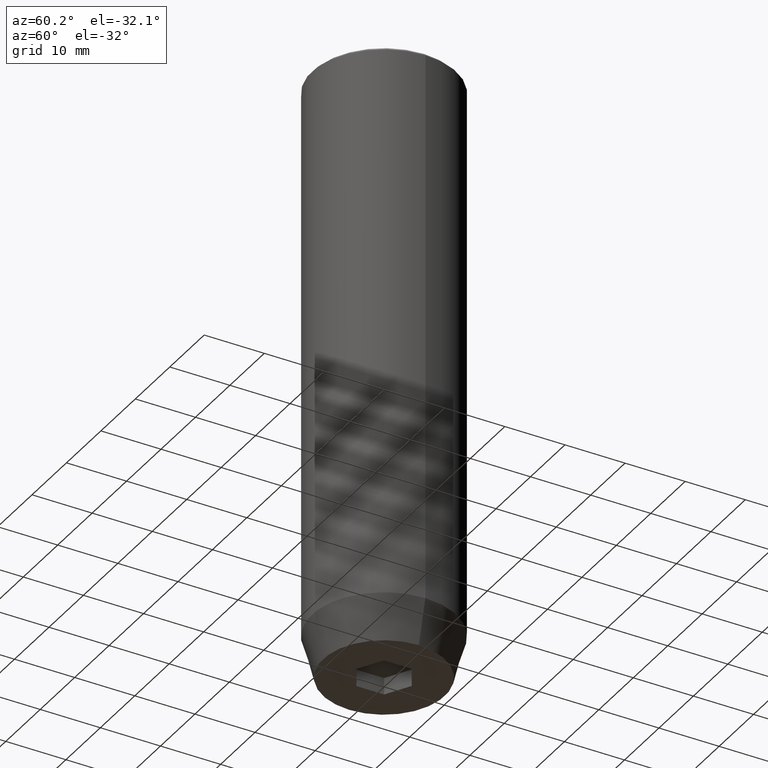
[diagram: clean part render]
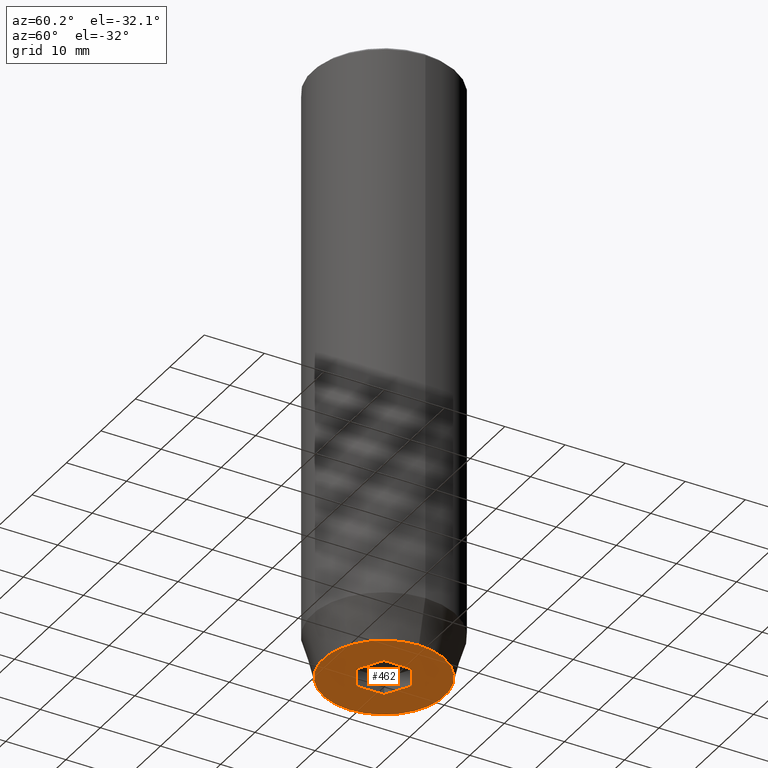
[diagram: same view with one face highlighted and labeled with its STEP entity id]
A machine part, auxiliary view. The second image highlights one B-rep face of the part: STEP entity #462.
In plain terms, the highlighted planar face has unit normal (0, 0, -1).
Its self-contained STEP definition (entity closure, byte-faithful):
#13 = CARTESIAN_POINT ( 'NONE',  ( -10.12435565298213547, 1.354726066681111050E-15, -100.0000000000000000 ) ) ;
#42 = EDGE_LOOP ( 'NONE', ( #418, #381 ) ) ;
#45 = VERTEX_POINT ( 'NONE', #216 ) ;
#51 = DIRECTION ( 'NONE',  ( -0.8660254037844384856, -0.5000000000000002220, 0.000000000000000000 ) ) ;
#62 = EDGE_LOOP ( 'NONE', ( #279, #327, #377, #289, #389, #101 ) ) ;
#64 = VERTEX_POINT ( 'NONE', #579 ) ;
#65 = EDGE_CURVE ( 'NONE', #196, #297, #489, .T. ) ;
#71 = EDGE_CURVE ( 'NONE', #64, #421, #127, .T. ) ;
#72 = CARTESIAN_POINT ( 'NONE',  ( 10.12435565298213547, 0.000000000000000000, -100.0000000000000000 ) ) ;
#91 = DIRECTION ( 'NONE',  ( 1.000000000000000000, 0.000000000000000000, 0.000000000000000000 ) ) ;
#99 = VECTOR ( 'NONE', #578, 1000.000000000000114 ) ;
#101 = ORIENTED_EDGE ( 'NONE', *, *, #180, .F. ) ;
#107 = VERTEX_POINT ( 'NONE', #124 ) ;
#115 = CARTESIAN_POINT ( 'NONE',  ( -4.000000000000000000, 0.000000000000000000, -100.0000000000000000 ) ) ;
#122 = CARTESIAN_POINT ( 'NONE',  ( 4.000000000000000000, 0.000000000000000000, -100.0000000000000000 ) ) ;
#124 = CARTESIAN_POINT ( 'NONE',  ( 4.336808689942017736E-16, -4.618802153517006737, -100.0000000000000000 ) ) ;
#127 = LINE ( 'NONE', #300, #539 ) ;
#129 = VECTOR ( 'NONE', #173, 1000.000000000000000 ) ;
#132 = CARTESIAN_POINT ( 'NONE',  ( 4.000000000000000000, -2.309401076758502480, -100.0000000000000000 ) ) ;
#141 = LINE ( 'NONE', #181, #384 ) ;
#157 = CARTESIAN_POINT ( 'NONE',  ( 2.000000000000000888, -3.464101615137754386, -100.0000000000000000 ) ) ;
#161 = DIRECTION ( 'NONE',  ( -1.000000000000000000, 0.000000000000000000, -0.000000000000000000 ) ) ;
#164 = CARTESIAN_POINT ( 'NONE',  ( 0.000000000000000000, 4.618802153517006737, -100.0000000000000000 ) ) ;
#172 = LINE ( 'NONE', #496, #99 ) ;
#173 = DIRECTION ( 'NONE',  ( 0.000000000000000000, -1.000000000000000000, 0.000000000000000000 ) ) ;
#176 = CARTESIAN_POINT ( 'NONE',  ( 0.000000000000000000, 0.000000000000000000, -100.0000000000000000 ) ) ;
#177 = VECTOR ( 'NONE', #51, 1000.000000000000114 ) ;
#180 = EDGE_CURVE ( 'NONE', #421, #196, #141, .T. ) ;
#181 = CARTESIAN_POINT ( 'NONE',  ( 2.000000000000000444, 3.464101615137754386, -100.0000000000000000 ) ) ;
#190 = CIRCLE ( 'NONE', #265, 10.12435565298213547 ) ;
#191 = LINE ( 'NONE', #115, #340 ) ;
#196 = VERTEX_POINT ( 'NONE', #223 ) ;
#216 = CARTESIAN_POINT ( 'NONE',  ( -4.000000000000000000, -2.309401076758503368, -100.0000000000000000 ) ) ;
#222 = EDGE_CURVE ( 'NONE', #474, #371, #190, .T. ) ;
#223 = CARTESIAN_POINT ( 'NONE',  ( 4.000000000000000000, 2.309401076758503368, -100.0000000000000000 ) ) ;
#241 = CIRCLE ( 'NONE', #573, 10.12435565298213547 ) ;
#245 = PLANE ( 'NONE',  #383 ) ;
#265 = AXIS2_PLACEMENT_3D ( 'NONE', #497, #367, #91 ) ;
#277 = EDGE_CURVE ( 'NONE', #371, #474, #241, .T. ) ;
#279 = ORIENTED_EDGE ( 'NONE', *, *, #71, .F. ) ;
#289 = ORIENTED_EDGE ( 'NONE', *, *, #416, .F. ) ;
#297 = VERTEX_POINT ( 'NONE', #132 ) ;
#300 = CARTESIAN_POINT ( 'NONE',  ( -2.000000000000000000, 3.464101615137754830, -100.0000000000000000 ) ) ;
#314 = DIRECTION ( 'NONE',  ( 0.8660254037844387076, 0.5000000000000001110, 0.000000000000000000 ) ) ;
#324 = EDGE_CURVE ( 'NONE', #45, #64, #191, .T. ) ;
#327 = ORIENTED_EDGE ( 'NONE', *, *, #324, .F. ) ;
#340 = VECTOR ( 'NONE', #523, 1000.000000000000000 ) ;
#353 = FACE_BOUND ( 'NONE', #62, .T. ) ;
#365 = DIRECTION ( 'NONE',  ( -0.000000000000000000, -0.000000000000000000, 1.000000000000000000 ) ) ;
#367 = DIRECTION ( 'NONE',  ( -0.000000000000000000, -0.000000000000000000, 1.000000000000000000 ) ) ;
#371 = VERTEX_POINT ( 'NONE', #72 ) ;
#376 = DIRECTION ( 'NONE',  ( 0.8660254037844385966, -0.5000000000000001110, 0.000000000000000000 ) ) ;
#377 = ORIENTED_EDGE ( 'NONE', *, *, #554, .F. ) ;
#381 = ORIENTED_EDGE ( 'NONE', *, *, #222, .F. ) ;
#383 = AXIS2_PLACEMENT_3D ( 'NONE', #475, #552, #161 ) ;
#384 = VECTOR ( 'NONE', #376, 1000.000000000000000 ) ;
#389 = ORIENTED_EDGE ( 'NONE', *, *, #65, .F. ) ;
#416 = EDGE_CURVE ( 'NONE', #297, #107, #570, .T. ) ;
#418 = ORIENTED_EDGE ( 'NONE', *, *, #277, .F. ) ;
#421 = VERTEX_POINT ( 'NONE', #164 ) ;
#427 = FACE_OUTER_BOUND ( 'NONE', #42, .T. ) ;
#462 = ADVANCED_FACE ( 'NONE', ( #353, #427 ), #245, .T. ) ;
#474 = VERTEX_POINT ( 'NONE', #13 ) ;
#475 = CARTESIAN_POINT ( 'NONE',  ( 0.000000000000000000, 10.12435565298213547, -100.0000000000000000 ) ) ;
#489 = LINE ( 'NONE', #122, #129 ) ;
#496 = CARTESIAN_POINT ( 'NONE',  ( -2.000000000000000888, -3.464101615137754386, -100.0000000000000000 ) ) ;
#497 = CARTESIAN_POINT ( 'NONE',  ( 0.000000000000000000, 0.000000000000000000, -100.0000000000000000 ) ) ;
#523 = DIRECTION ( 'NONE',  ( 0.000000000000000000, 1.000000000000000000, 0.000000000000000000 ) ) ;
#539 = VECTOR ( 'NONE', #314, 999.9999999999998863 ) ;
#547 = DIRECTION ( 'NONE',  ( 1.000000000000000000, 0.000000000000000000, 0.000000000000000000 ) ) ;
#552 = DIRECTION ( 'NONE',  ( 0.000000000000000000, 0.000000000000000000, -1.000000000000000000 ) ) ;
#554 = EDGE_CURVE ( 'NONE', #107, #45, #172, .T. ) ;
#570 = LINE ( 'NONE', #157, #177 ) ;
#573 = AXIS2_PLACEMENT_3D ( 'NONE', #176, #365, #547 ) ;
#578 = DIRECTION ( 'NONE',  ( -0.8660254037844384856, 0.5000000000000002220, 0.000000000000000000 ) ) ;
#579 = CARTESIAN_POINT ( 'NONE',  ( -4.000000000000000000, 2.309401076758503368, -100.0000000000000000 ) ) ;